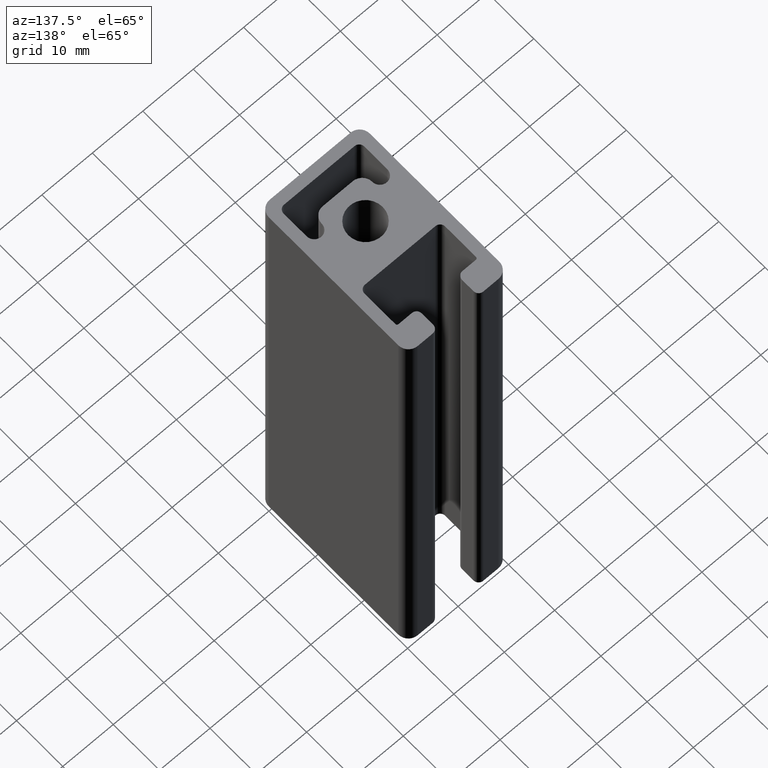
[diagram: clean part render]
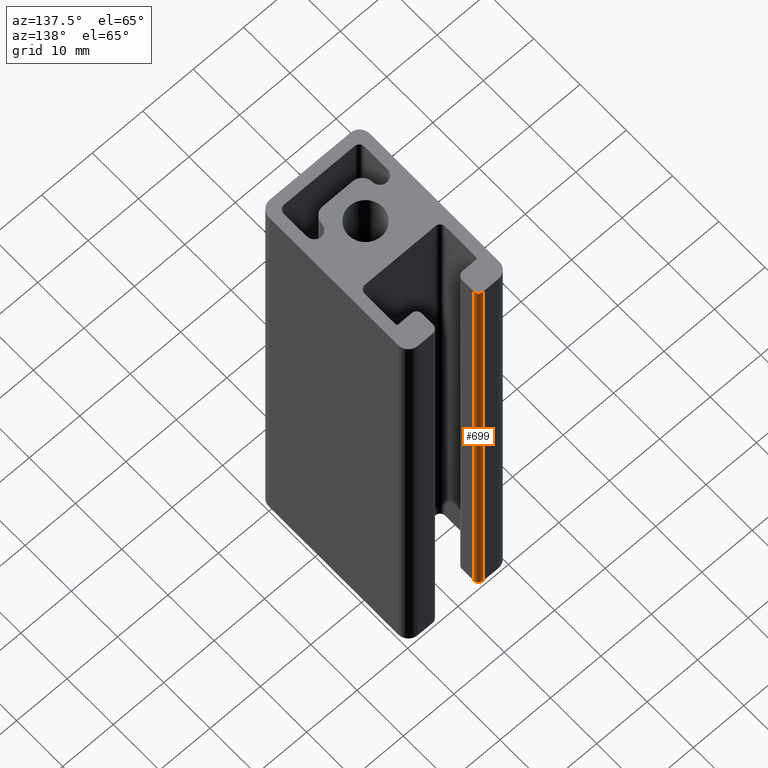
[diagram: same view with one face highlighted and labeled with its STEP entity id]
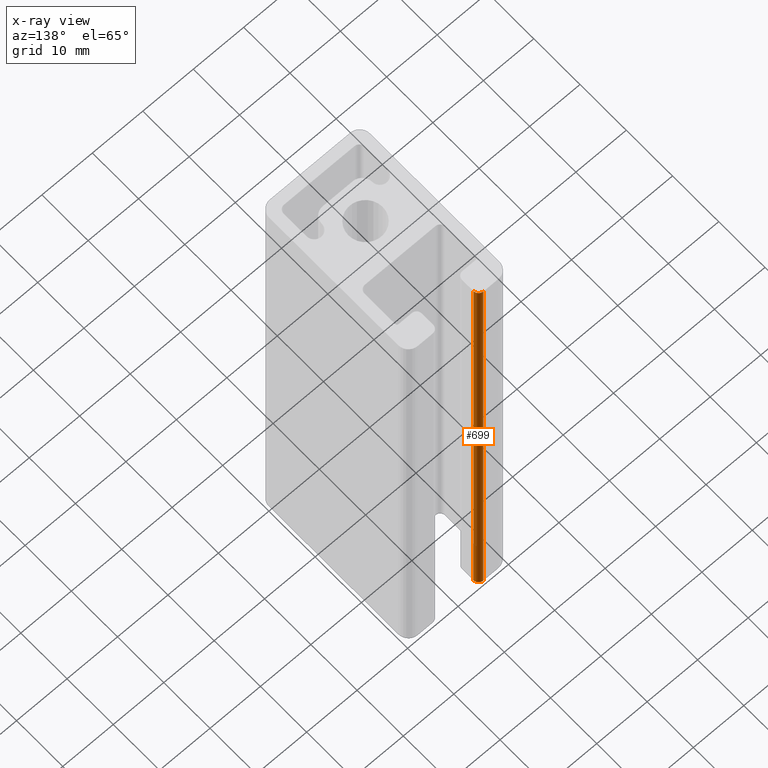
[diagram: x-ray of the same camera — body ghosted, the highlighted face saturated]
A machine part, auxiliary view. The second image highlights one B-rep face of the part: STEP entity #699.
The next image is the same camera in x-ray: the body ghosted, the highlighted face saturated — about 0% of this face is hidden behind the body in this view.
In plain terms, the highlighted cylindrical surface (edge-blend (fillet) strip) has radius 1 mm, axis along (0, 0, 1).
Its self-contained STEP definition (entity closure, byte-faithful):
#33=LINE('',#1091,#99);
#34=LINE('',#1094,#100);
#99=VECTOR('',#876,100.);
#100=VECTOR('',#879,100.);
#181=FACE_OUTER_BOUND('',#219,.T.);
#219=EDGE_LOOP('',(#503,#504,#505,#506));
#263=CIRCLE('',#753,0.999998004047022);
#264=CIRCLE('',#754,0.999998004047022);
#309=VERTEX_POINT('',#1087);
#310=VERTEX_POINT('',#1088);
#311=VERTEX_POINT('',#1090);
#312=VERTEX_POINT('',#1092);
#389=EDGE_CURVE('',#309,#310,#263,.T.);
#390=EDGE_CURVE('',#311,#309,#33,.T.);
#391=EDGE_CURVE('',#312,#311,#264,.T.);
#392=EDGE_CURVE('',#310,#312,#34,.T.);
#503=ORIENTED_EDGE('',*,*,#389,.F.);
#504=ORIENTED_EDGE('',*,*,#390,.F.);
#505=ORIENTED_EDGE('',*,*,#391,.F.);
#506=ORIENTED_EDGE('',*,*,#392,.F.);
#676=CYLINDRICAL_SURFACE('',#752,0.999998004047022);
#699=ADVANCED_FACE('',(#181),#676,.T.);
#752=AXIS2_PLACEMENT_3D('',#1086,#872,#873);
#753=AXIS2_PLACEMENT_3D('',#1089,#874,#875);
#754=AXIS2_PLACEMENT_3D('',#1093,#877,#878);
#872=DIRECTION('center_axis',(0.,0.,1.));
#873=DIRECTION('ref_axis',(-1.,-2.44249552928157E-14,0.));
#874=DIRECTION('center_axis',(0.,0.,1.));
#875=DIRECTION('ref_axis',(-1.,-2.44249552928157E-14,0.));
#876=DIRECTION('',(0.,0.,1.));
#877=DIRECTION('center_axis',(0.,0.,-1.));
#878=DIRECTION('ref_axis',(-1.,-2.44249552928157E-14,0.));
#879=DIRECTION('',(0.,0.,-1.));
#1086=CARTESIAN_POINT('Origin',(-4.99999800404702,19.000001995953,0.));
#1087=CARTESIAN_POINT('',(-4.,19.000001995953,100.));
#1088=CARTESIAN_POINT('',(-4.99999800404701,20.,100.));
#1089=CARTESIAN_POINT('Origin',(-4.99999800404702,19.000001995953,100.));
#1090=CARTESIAN_POINT('',(-4.,19.000001995953,0.));
#1091=CARTESIAN_POINT('',(-4.,19.000001995953,0.));
#1092=CARTESIAN_POINT('',(-4.99999800404701,20.,0.));
#1093=CARTESIAN_POINT('Origin',(-4.99999800404702,19.000001995953,0.));
#1094=CARTESIAN_POINT('',(-4.99999800404702,20.,0.));